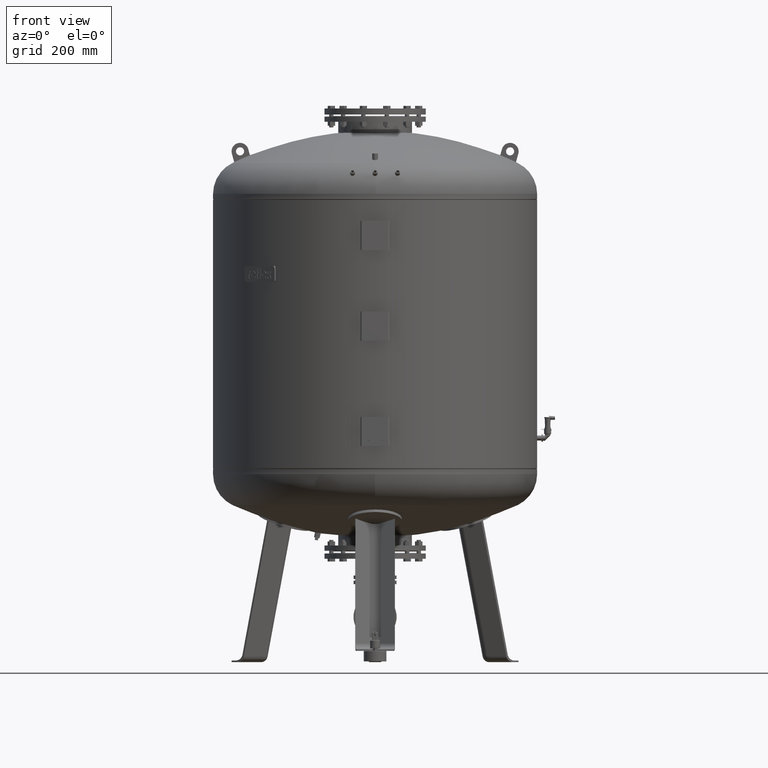
[diagram: clean part render]
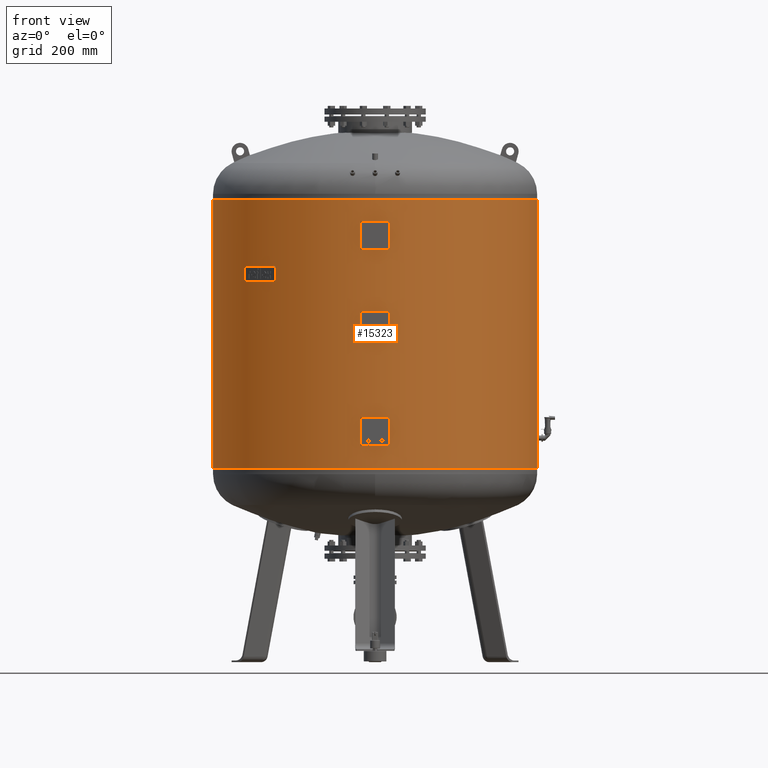
[diagram: same view with one face highlighted and labeled with its STEP entity id]
A machine part, front view. The second image highlights one B-rep face of the part: STEP entity #15323.
In plain terms, the highlighted cylindrical surface (partial cylindrical patch) has radius 600 mm, axis along (0, 0, 1).
Its self-contained STEP definition (entity closure, byte-faithful):
#15282=CARTESIAN_POINT('',(8.293918E-015,0.0,1463.500000000000000));
#15283=DIRECTION('',(3.337593E-017,0.0,1.0));
#15284=DIRECTION('',(1.0,0.0,0.0));
#15285=AXIS2_PLACEMENT_3D('',#15282,#15283,#15284);
#15286=CYLINDRICAL_SURFACE('',#15285,600.000000000000450);
#15287=CARTESIAN_POINT('',(600.000000000000570,0.0,1711.999999999999800));
#15288=VERTEX_POINT('',#15287);
#15289=CARTESIAN_POINT('',(600.000000000000110,0.0,717.999999999999770));
#15290=VERTEX_POINT('',#15289);
#15291=CARTESIAN_POINT('',(600.000000000000570,0.0,1711.999999999999800));
#15292=DIRECTION('',(0.0,0.0,-1.0));
#15293=VECTOR('',#15292,994.0);
#15294=LINE('',#15291,#15293);
#15295=EDGE_CURVE('',#15288,#15290,#15294,.T.);
#15296=ORIENTED_EDGE('',*,*,#15295,.F.);
#15297=CARTESIAN_POINT('',(-600.000000000000450,-7.347638E-014,1711.999999999999800));
#15298=VERTEX_POINT('',#15297);
#15299=CARTESIAN_POINT('',(1.658784E-014,0.0,1711.999999999999800));
#15300=DIRECTION('',(0.0,0.0,1.0));
#15301=DIRECTION('',(1.0,0.0,0.0));
#15302=AXIS2_PLACEMENT_3D('',#15299,#15300,#15301);
#15303=CIRCLE('',#15302,600.000000000000570);
#15304=EDGE_CURVE('',#15298,#15288,#15303,.T.);
#15305=ORIENTED_EDGE('',*,*,#15304,.F.);
#15306=CARTESIAN_POINT('',(-600.000000000000110,-7.347638E-014,717.999999999999770));
#15307=VERTEX_POINT('',#15306);
#15308=CARTESIAN_POINT('',(-600.000000000000450,-7.347638E-014,1711.999999999999800));
#15309=DIRECTION('',(0.0,0.0,-1.0));
#15310=VECTOR('',#15309,994.0);
#15311=LINE('',#15308,#15310);
#15312=EDGE_CURVE('',#15298,#15307,#15311,.T.);
#15313=ORIENTED_EDGE('',*,*,#15312,.T.);
#15314=CARTESIAN_POINT('',(-1.658784E-014,0.0,717.999999999999770));
#15315=DIRECTION('',(0.0,0.0,1.0));
#15316=DIRECTION('',(1.0,0.0,0.0));
#15317=AXIS2_PLACEMENT_3D('',#15314,#15315,#15316);
#15318=CIRCLE('',#15317,600.000000000000110);
#15319=EDGE_CURVE('',#15307,#15290,#15318,.T.);
#15320=ORIENTED_EDGE('',*,*,#15319,.T.);
#15321=EDGE_LOOP('',(#15296,#15305,#15313,#15320));
#15322=FACE_OUTER_BOUND('',#15321,.T.);
#15323=ADVANCED_FACE('',(#15322),#15286,.T.);